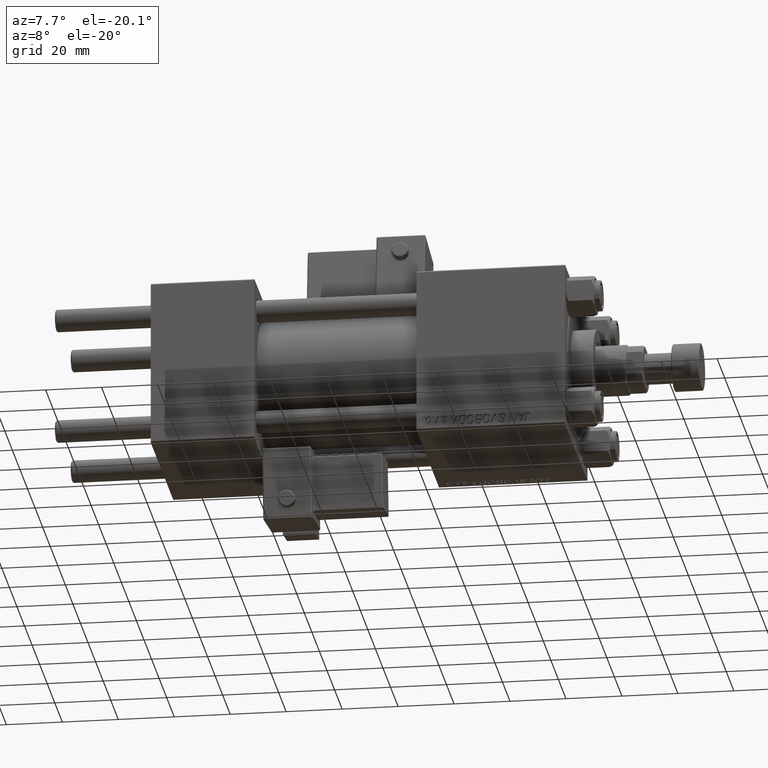
[diagram: clean part render]
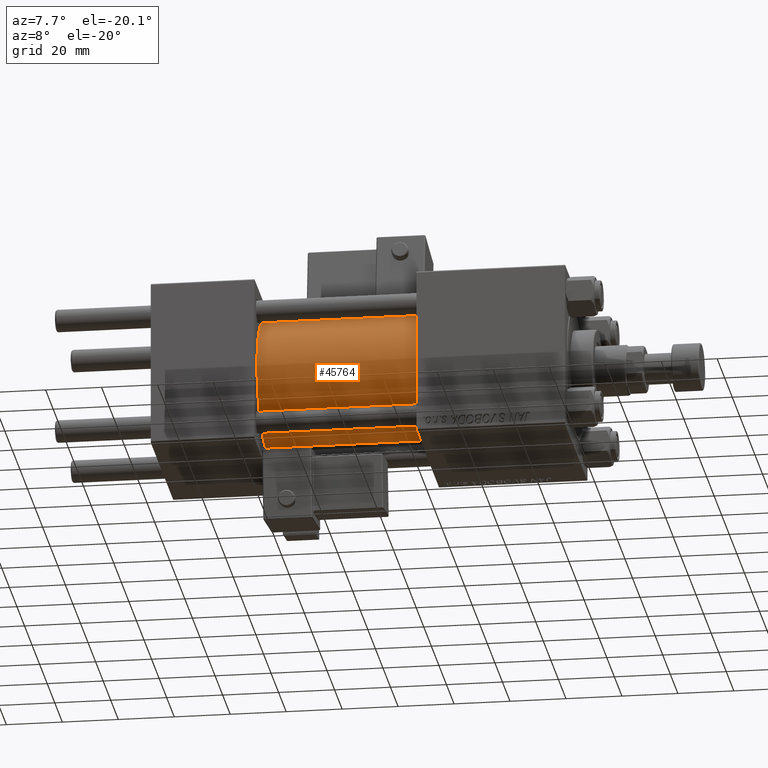
[diagram: same view with one face highlighted and labeled with its STEP entity id]
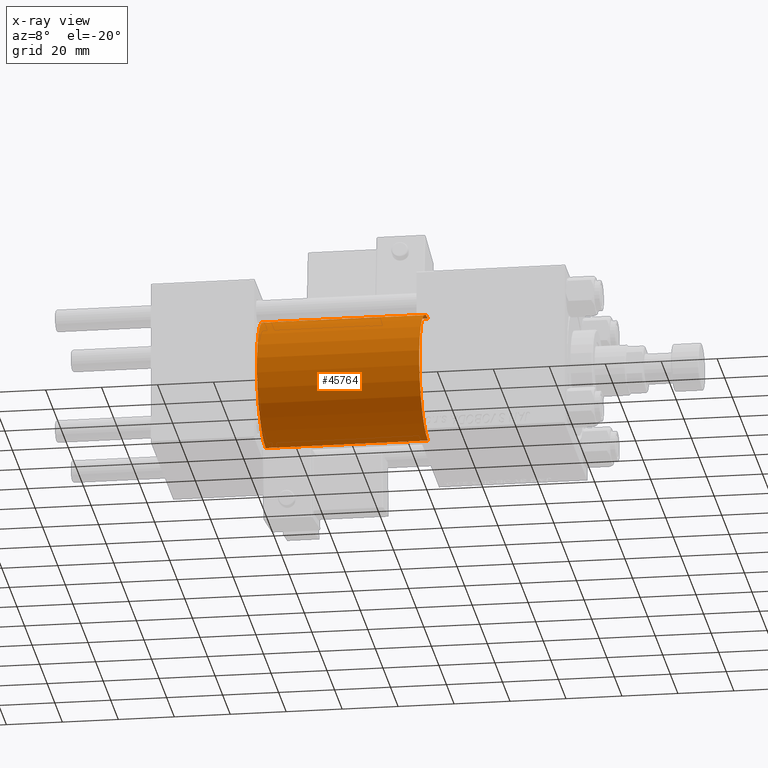
[diagram: x-ray of the same camera — body ghosted, the highlighted face saturated]
A machine part, auxiliary view. The second image highlights one B-rep face of the part: STEP entity #45764.
The next image is the same camera in x-ray: the body ghosted, the highlighted face saturated — about 0% of this face is hidden behind the body in this view.
In plain terms, the highlighted cylindrical surface (partial cylindrical patch) has radius 23 mm, axis along (-1, -0, -0).
Its self-contained STEP definition (entity closure, byte-faithful):
#401 = AXIS2_PLACEMENT_3D ( 'NONE', #50004, #22414, #1980 ) ;
#1980 = DIRECTION ( 'NONE',  ( 0.000000000000000000, 0.000000000000000000, 1.000000000000000000 ) ) ;
#2927 = EDGE_CURVE ( 'NONE', #44544, #17006, #8883, .T. ) ;
#3587 = CARTESIAN_POINT ( 'NONE',  ( 95.00000000000000000, 0.000000000000000000, 23.00000000000000000 ) ) ;
#3636 = ORIENTED_EDGE ( 'NONE', *, *, #35845, .F. ) ;
#3894 = ORIENTED_EDGE ( 'NONE', *, *, #11283, .T. ) ;
#8883 = CIRCLE ( 'NONE', #401, 23.00000000000000000 ) ;
#9137 = EDGE_CURVE ( 'NONE', #24508, #17006, #31276, .T. ) ;
#10831 = AXIS2_PLACEMENT_3D ( 'NONE', #36097, #27129, #19410 ) ;
#11283 = EDGE_CURVE ( 'NONE', #24412, #44544, #42363, .T. ) ;
#17006 = VERTEX_POINT ( 'NONE', #48762 ) ;
#18111 = DIRECTION ( 'NONE',  ( 0.000000000000000000, 0.000000000000000000, 1.000000000000000000 ) ) ;
#18158 = CARTESIAN_POINT ( 'NONE',  ( 95.00000000000000000, 2.816687638038911957E-15, -23.00000000000000000 ) ) ;
#19410 = DIRECTION ( 'NONE',  ( 0.000000000000000000, 0.000000000000000000, -1.000000000000000000 ) ) ;
#21561 = CARTESIAN_POINT ( 'NONE',  ( 95.00000000000000000, 0.000000000000000000, 0.000000000000000000 ) ) ;
#21835 = DIRECTION ( 'NONE',  ( -1.000000000000000000, -0.000000000000000000, -0.000000000000000000 ) ) ;
#21838 = VECTOR ( 'NONE', #51419, 1000.000000000000000 ) ;
#22414 = DIRECTION ( 'NONE',  ( 1.000000000000000000, -0.000000000000000000, 0.000000000000000000 ) ) ;
#24399 = CIRCLE ( 'NONE', #10831, 23.00000000000000000 ) ;
#24412 = VERTEX_POINT ( 'NONE', #3587 ) ;
#24508 = VERTEX_POINT ( 'NONE', #18158 ) ;
#25284 = FACE_OUTER_BOUND ( 'NONE', #47348, .T. ) ;
#27129 = DIRECTION ( 'NONE',  ( 1.000000000000000000, 0.000000000000000000, 0.000000000000000000 ) ) ;
#28190 = ORIENTED_EDGE ( 'NONE', *, *, #2927, .T. ) ;
#29593 = CARTESIAN_POINT ( 'NONE',  ( 37.00000000000000000, 0.000000000000000000, 23.00000000000000000 ) ) ;
#31276 = LINE ( 'NONE', #39481, #21838 ) ;
#32912 = VECTOR ( 'NONE', #34381, 1000.000000000000000 ) ;
#34381 = DIRECTION ( 'NONE',  ( -1.000000000000000000, -0.000000000000000000, -0.000000000000000000 ) ) ;
#34458 = AXIS2_PLACEMENT_3D ( 'NONE', #21561, #21835, #18111 ) ;
#35845 = EDGE_CURVE ( 'NONE', #24412, #24508, #24399, .T. ) ;
#36097 = CARTESIAN_POINT ( 'NONE',  ( 95.00000000000000000, 0.000000000000000000, 0.000000000000000000 ) ) ;
#39481 = CARTESIAN_POINT ( 'NONE',  ( 95.00000000000000000, 2.816687638038911957E-15, -23.00000000000000000 ) ) ;
#42093 = CARTESIAN_POINT ( 'NONE',  ( 95.00000000000000000, 0.000000000000000000, 23.00000000000000000 ) ) ;
#42363 = LINE ( 'NONE', #42093, #32912 ) ;
#44544 = VERTEX_POINT ( 'NONE', #29593 ) ;
#45764 = ADVANCED_FACE ( 'NONE', ( #25284 ), #46494, .T. ) ;
#46494 = CYLINDRICAL_SURFACE ( 'NONE', #34458, 23.00000000000000000 ) ;
#47348 = EDGE_LOOP ( 'NONE', ( #52164, #3636, #3894, #28190 ) ) ;
#48762 = CARTESIAN_POINT ( 'NONE',  ( 37.00000000000000000, 2.816687638038911957E-15, -23.00000000000000000 ) ) ;
#50004 = CARTESIAN_POINT ( 'NONE',  ( 37.00000000000000000, 0.000000000000000000, 0.000000000000000000 ) ) ;
#51419 = DIRECTION ( 'NONE',  ( -1.000000000000000000, -0.000000000000000000, -0.000000000000000000 ) ) ;
#52164 = ORIENTED_EDGE ( 'NONE', *, *, #9137, .F. ) ;